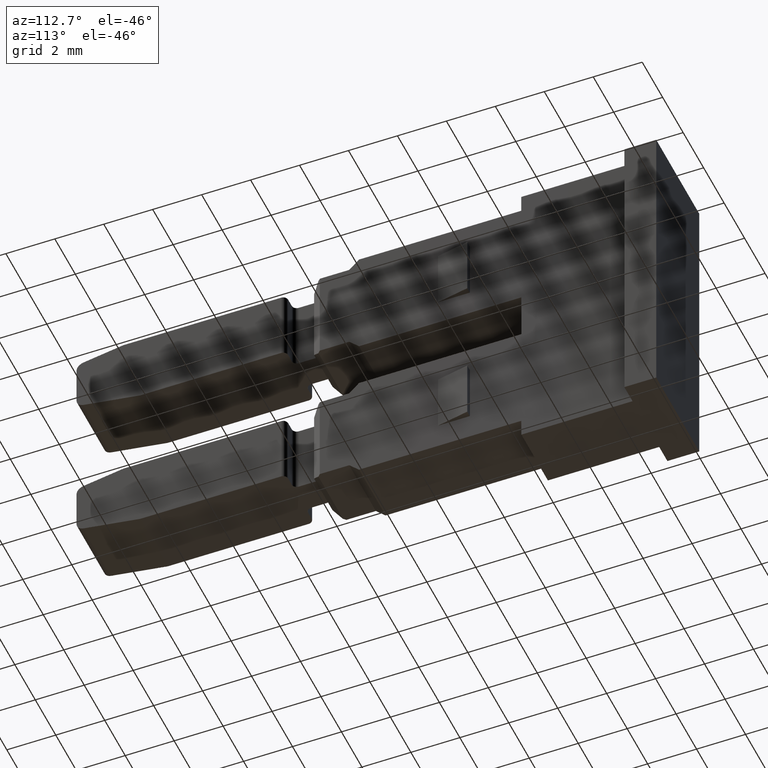
[diagram: clean part render]
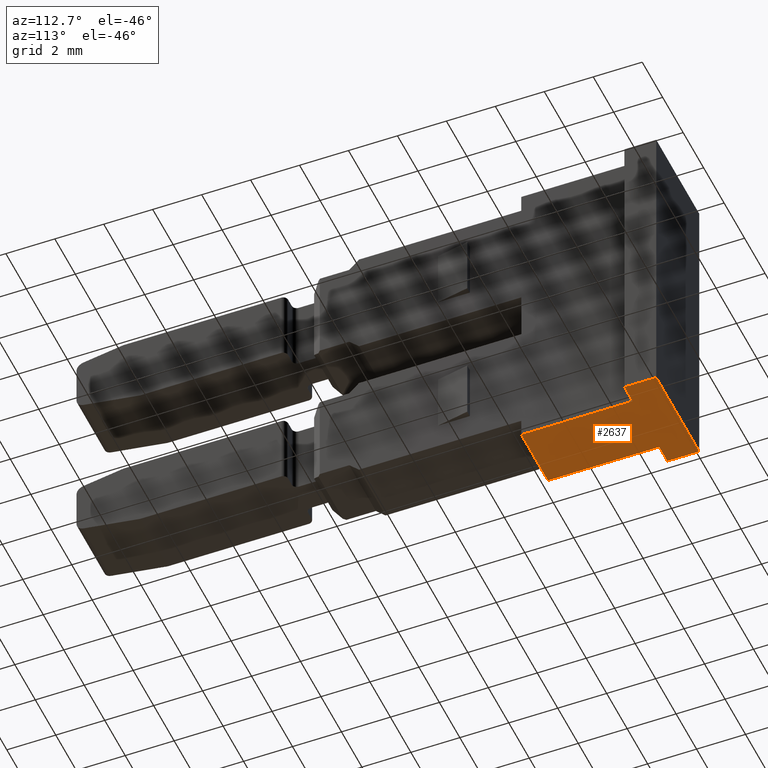
[diagram: same view with one face highlighted and labeled with its STEP entity id]
A machine part, auxiliary view. The second image highlights one B-rep face of the part: STEP entity #2637.
In plain terms, the highlighted planar face has unit normal (-0, 0, 1).
Its self-contained STEP definition (entity closure, byte-faithful):
#130 = EDGE_LOOP ( 'NONE', ( #588, #556, #589, #571, #593, #610, #605, #559 ) ) ;
#153 = CARTESIAN_POINT ( 'NONE',  ( 1390.782495781569000, 1072.109098783725400, -3.099999999942421300 ) ) ;
#203 = CARTESIAN_POINT ( 'NONE',  ( 1393.382384858510700, 1072.109123440697900, -3.099999999942417300 ) ) ;
#223 = CARTESIAN_POINT ( 'NONE',  ( 1390.782452648993700, 1076.657098783517300, -3.099999999942287600 ) ) ;
#243 = CARTESIAN_POINT ( 'NONE',  ( 1389.982440319639900, 1077.957131028571000, -3.099999999942422600 ) ) ;
#261 = CARTESIAN_POINT ( 'NONE',  ( 1389.982452649029900, 1076.657091196432900, -3.099999999942287600 ) ) ;
#272 = CARTESIAN_POINT ( 'NONE',  ( 1393.382427990852000, 1076.657098783517300, -3.099999999942417300 ) ) ;
#286 = CARTESIAN_POINT ( 'NONE',  ( 1394.182427990817400, 1076.657091196432900, -3.099999999942415900 ) ) ;
#299 = CARTESIAN_POINT ( 'NONE',  ( 1394.182440319829500, 1077.957091196375100, -3.099999999942415900 ) ) ;
#439 = VERTEX_POINT ( 'NONE', #153 ) ;
#468 = VERTEX_POINT ( 'NONE', #223 ) ;
#480 = VERTEX_POINT ( 'NONE', #243 ) ;
#484 = VERTEX_POINT ( 'NONE', #203 ) ;
#519 = VERTEX_POINT ( 'NONE', #272 ) ;
#540 = VERTEX_POINT ( 'NONE', #261 ) ;
#545 = VERTEX_POINT ( 'NONE', #286 ) ;
#551 = VERTEX_POINT ( 'NONE', #299 ) ;
#556 = ORIENTED_EDGE ( 'NONE', *, *, #2510, .F. ) ;
#559 = ORIENTED_EDGE ( 'NONE', *, *, #2484, .F. ) ;
#571 = ORIENTED_EDGE ( 'NONE', *, *, #2439, .F. ) ;
#588 = ORIENTED_EDGE ( 'NONE', *, *, #2665, .F. ) ;
#589 = ORIENTED_EDGE ( 'NONE', *, *, #2491, .F. ) ;
#593 = ORIENTED_EDGE ( 'NONE', *, *, #2453, .F. ) ;
#605 = ORIENTED_EDGE ( 'NONE', *, *, #2504, .F. ) ;
#610 = ORIENTED_EDGE ( 'NONE', *, *, #2473, .T. ) ;
#1168 = LINE ( 'NONE', #1225, #2058 ) ;
#1195 = CARTESIAN_POINT ( 'NONE',  ( 1394.182438900849800, 1077.807470640193100, -3.099999999942415900 ) ) ;
#1210 = LINE ( 'NONE', #1195, #2037 ) ;
#1211 = DIRECTION ( 'NONE',  ( -0.9999999999550282000, 9.483856143999501200E-006, -1.734723475820503000E-015 ) ) ;
#1225 = CARTESIAN_POINT ( 'NONE',  ( 1394.082440319833900, 1077.957092144760700, -3.099999999942415900 ) ) ;
#1243 = DIRECTION ( 'NONE',  ( 9.483855581199667300E-006, 0.9999999999550282000, -7.505716123672705500E-030 ) ) ;
#1270 = LINE ( 'NONE', #1303, #2101 ) ;
#1292 = LINE ( 'NONE', #1293, #2096 ) ;
#1293 = CARTESIAN_POINT ( 'NONE',  ( 1390.832495781566600, 1072.109099257918200, -3.099999999942421300 ) ) ;
#1299 = DIRECTION ( 'NONE',  ( -0.9999999999550282000, 9.483855577349521400E-006, -1.714874837315600700E-015 ) ) ;
#1303 = CARTESIAN_POINT ( 'NONE',  ( 1412.087152898683600, 1076.656921390607700, -3.099999999942384800 ) ) ;
#1350 = DIRECTION ( 'NONE',  ( 0.9999999999550282000, 9.483855628318649900E-006, 1.734800447650231500E-015 ) ) ;
#1354 = DIRECTION ( 'NONE',  ( 9.483855538397650900E-006, -0.9999999999550282000, 3.252725052651167200E-020 ) ) ;
#1355 = CARTESIAN_POINT ( 'NONE',  ( 1389.982441742596200, 1077.807091196377100, -3.099999999942422600 ) ) ;
#1359 = LINE ( 'NONE', #1355, #2113 ) ;
#1375 = DIRECTION ( 'NONE',  ( 9.483855583750710300E-006, 0.9999999999550282000, -3.130996347652481000E-030 ) ) ;
#1378 = CARTESIAN_POINT ( 'NONE',  ( 1393.382438900884600, 1077.807478227277400, -3.099999999942417300 ) ) ;
#1387 = LINE ( 'NONE', #1378, #2090 ) ;
#1403 = CARTESIAN_POINT ( 'NONE',  ( 1390.236041803239900, 1076.657093601435700, -3.099999999942287600 ) ) ;
#1404 = LINE ( 'NONE', #1403, #2106 ) ;
#1416 = DIRECTION ( 'NONE',  ( 0.9999999999550282000, 9.483855577349521400E-006, -0.0000000000000000000 ) ) ;
#1919 = CARTESIAN_POINT ( 'NONE',  ( 1412.087163808716000, 1077.807300834367900, -3.099999999942384800 ) ) ;
#1920 = DIRECTION ( 'NONE',  ( 1.000000000000000000, 0.0000000000000000000, 1.714874837238479900E-015 ) ) ;
#1922 = DIRECTION ( 'NONE',  ( -1.714874837238479900E-015, 1.626362530444015100E-020, 1.000000000000000000 ) ) ;
#1939 = FACE_OUTER_BOUND ( 'NONE', #130, .T. ) ;
#1953 = PLANE ( 'NONE',  #2255 ) ;
#1974 = DIRECTION ( 'NONE',  ( 9.483855583750710300E-006, -0.9999999999550282000, 3.252725060428649500E-020 ) ) ;
#1976 = LINE ( 'NONE', #1980, #2198 ) ;
#1980 = CARTESIAN_POINT ( 'NONE',  ( 1390.782441742559700, 1077.807098783460600, -3.099999999942421300 ) ) ;
#2037 = VECTOR ( 'NONE', #1243, 1000.000000000000200 ) ;
#2058 = VECTOR ( 'NONE', #1211, 1000.000000000000200 ) ;
#2090 = VECTOR ( 'NONE', #1375, 1000.000000000000200 ) ;
#2096 = VECTOR ( 'NONE', #1350, 1000.000000000000200 ) ;
#2101 = VECTOR ( 'NONE', #1299, 1000.000000000000200 ) ;
#2106 = VECTOR ( 'NONE', #1416, 1000.000000000000200 ) ;
#2113 = VECTOR ( 'NONE', #1354, 1000.000000000000200 ) ;
#2198 = VECTOR ( 'NONE', #1974, 1000.000000000000200 ) ;
#2255 = AXIS2_PLACEMENT_3D ( 'NONE', #1919, #1922, #1920 ) ;
#2439 = EDGE_CURVE ( 'NONE', #551, #480, #1168, .T. ) ;
#2453 = EDGE_CURVE ( 'NONE', #545, #551, #1210, .T. ) ;
#2473 = EDGE_CURVE ( 'NONE', #545, #519, #1270, .T. ) ;
#2484 = EDGE_CURVE ( 'NONE', #439, #484, #1292, .T. ) ;
#2491 = EDGE_CURVE ( 'NONE', #480, #540, #1359, .T. ) ;
#2504 = EDGE_CURVE ( 'NONE', #484, #519, #1387, .T. ) ;
#2510 = EDGE_CURVE ( 'NONE', #540, #468, #1404, .T. ) ;
#2637 = ADVANCED_FACE ( 'NONE', ( #1939 ), #1953, .F. ) ;
#2665 = EDGE_CURVE ( 'NONE', #468, #439, #1976, .T. ) ;